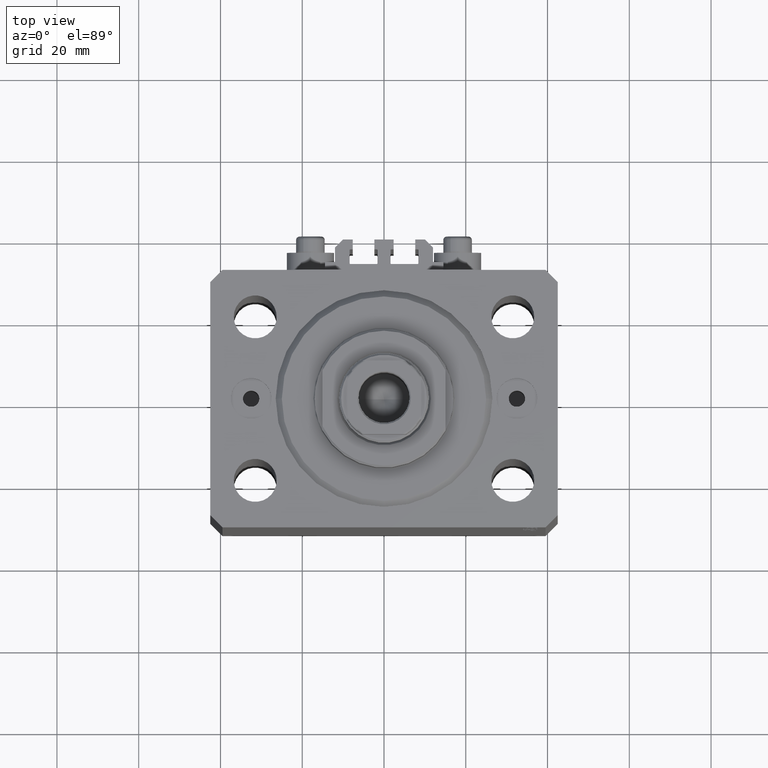
[diagram: clean part render]
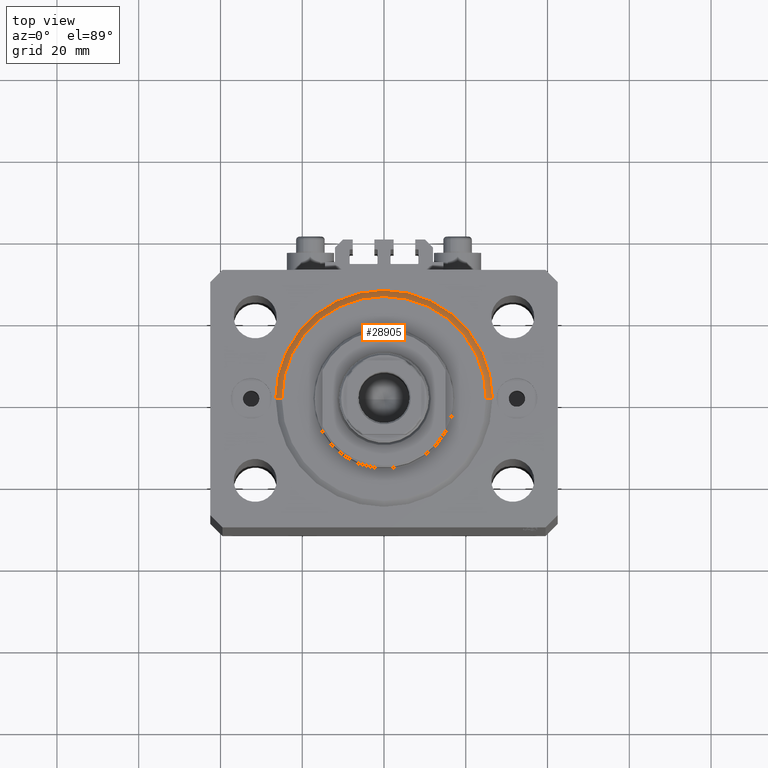
[diagram: same view with one face highlighted and labeled with its STEP entity id]
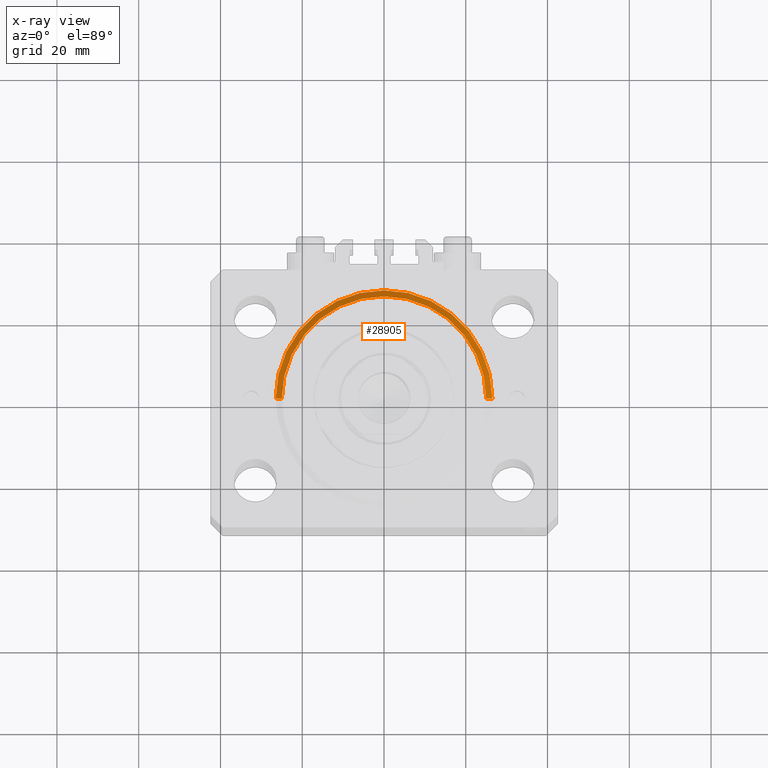
[diagram: x-ray of the same camera — body ghosted, the highlighted face saturated]
A machine part, top view. The second image highlights one B-rep face of the part: STEP entity #28905.
The next image is the same camera in x-ray: the body ghosted, the highlighted face saturated — about 0% of this face is hidden behind the body in this view.
In plain terms, the highlighted conical surface has half-angle 45 deg.
Its self-contained STEP definition (entity closure, byte-faithful):
#584 = AXIS2_PLACEMENT_3D ( 'NONE', #2776, #2307, #17340 ) ;
#1427 = EDGE_CURVE ( 'NONE', #38873, #20924, #32875, .T. ) ;
#2307 = DIRECTION ( 'NONE',  ( -0.000000000000000000, -0.000000000000000000, -1.000000000000000000 ) ) ;
#2664 = CARTESIAN_POINT ( 'NONE',  ( 26.50000000000000355, 3.245314017740486554E-15, 1.500000000000018652 ) ) ;
#2776 = CARTESIAN_POINT ( 'NONE',  ( 0.000000000000000000, 0.000000000000000000, 0.000000000000000000 ) ) ;
#2951 = CARTESIAN_POINT ( 'NONE',  ( 26.50000000000000355, 0.000000000000000000, 1.500000000000018652 ) ) ;
#2987 = CONICAL_SURFACE ( 'NONE', #43403, 26.50000000000000355, 0.7853981633974495002 ) ;
#8496 = ORIENTED_EDGE ( 'NONE', *, *, #1427, .T. ) ;
#9493 = VECTOR ( 'NONE', #17524, 1000.000000000000000 ) ;
#10059 = VERTEX_POINT ( 'NONE', #21835 ) ;
#12496 = DIRECTION ( 'NONE',  ( -0.000000000000000000, -0.000000000000000000, 1.000000000000000000 ) ) ;
#14345 = CIRCLE ( 'NONE', #584, 24.99999999999998224 ) ;
#15815 = CARTESIAN_POINT ( 'NONE',  ( -24.99999999999998224, 3.153465507804433615E-15, 0.000000000000000000 ) ) ;
#16140 = DIRECTION ( 'NONE',  ( -0.000000000000000000, -0.000000000000000000, 1.000000000000000000 ) ) ;
#16795 = AXIS2_PLACEMENT_3D ( 'NONE', #30644, #12496, #35160 ) ;
#17340 = DIRECTION ( 'NONE',  ( 1.000000000000000000, 0.000000000000000000, 0.000000000000000000 ) ) ;
#17469 = VERTEX_POINT ( 'NONE', #2664 ) ;
#17524 = DIRECTION ( 'NONE',  ( 0.7071067811865483499, 0.000000000000000000, 0.7071067811865466846 ) ) ;
#18462 = EDGE_LOOP ( 'NONE', ( #39461, #8496, #22253, #34797 ) ) ;
#19259 = DIRECTION ( 'NONE',  ( 1.000000000000000000, 0.000000000000000000, 0.000000000000000000 ) ) ;
#20924 = VERTEX_POINT ( 'NONE', #34538 ) ;
#21108 = LINE ( 'NONE', #2951, #9493 ) ;
#21835 = CARTESIAN_POINT ( 'NONE',  ( 24.99999999999998224, 0.000000000000000000, 0.000000000000000000 ) ) ;
#22253 = ORIENTED_EDGE ( 'NONE', *, *, #28211, .F. ) ;
#22778 = EDGE_CURVE ( 'NONE', #38873, #10059, #14345, .T. ) ;
#24430 = CIRCLE ( 'NONE', #16795, 26.50000000000000355 ) ;
#26409 = DIRECTION ( 'NONE',  ( -0.7071067811865483499, 8.659560562354942719E-17, 0.7071067811865466846 ) ) ;
#28031 = VECTOR ( 'NONE', #26409, 1000.000000000000000 ) ;
#28211 = EDGE_CURVE ( 'NONE', #17469, #20924, #24430, .T. ) ;
#28905 = ADVANCED_FACE ( 'NONE', ( #30718 ), #2987, .T. ) ;
#30644 = CARTESIAN_POINT ( 'NONE',  ( 0.000000000000000000, 0.000000000000000000, 1.500000000000018652 ) ) ;
#30718 = FACE_OUTER_BOUND ( 'NONE', #18462, .T. ) ;
#32875 = LINE ( 'NONE', #42902, #28031 ) ;
#34538 = CARTESIAN_POINT ( 'NONE',  ( -26.50000000000000355, 0.000000000000000000, 1.500000000000018652 ) ) ;
#34797 = ORIENTED_EDGE ( 'NONE', *, *, #43296, .F. ) ;
#35160 = DIRECTION ( 'NONE',  ( 1.000000000000000000, 0.000000000000000000, 0.000000000000000000 ) ) ;
#38873 = VERTEX_POINT ( 'NONE', #15815 ) ;
#39461 = ORIENTED_EDGE ( 'NONE', *, *, #22778, .F. ) ;
#41453 = CARTESIAN_POINT ( 'NONE',  ( 0.000000000000000000, 0.000000000000000000, 1.500000000000018652 ) ) ;
#42902 = CARTESIAN_POINT ( 'NONE',  ( -26.50000000000000355, 3.245314017740486554E-15, 1.500000000000018652 ) ) ;
#43296 = EDGE_CURVE ( 'NONE', #10059, #17469, #21108, .T. ) ;
#43403 = AXIS2_PLACEMENT_3D ( 'NONE', #41453, #16140, #19259 ) ;